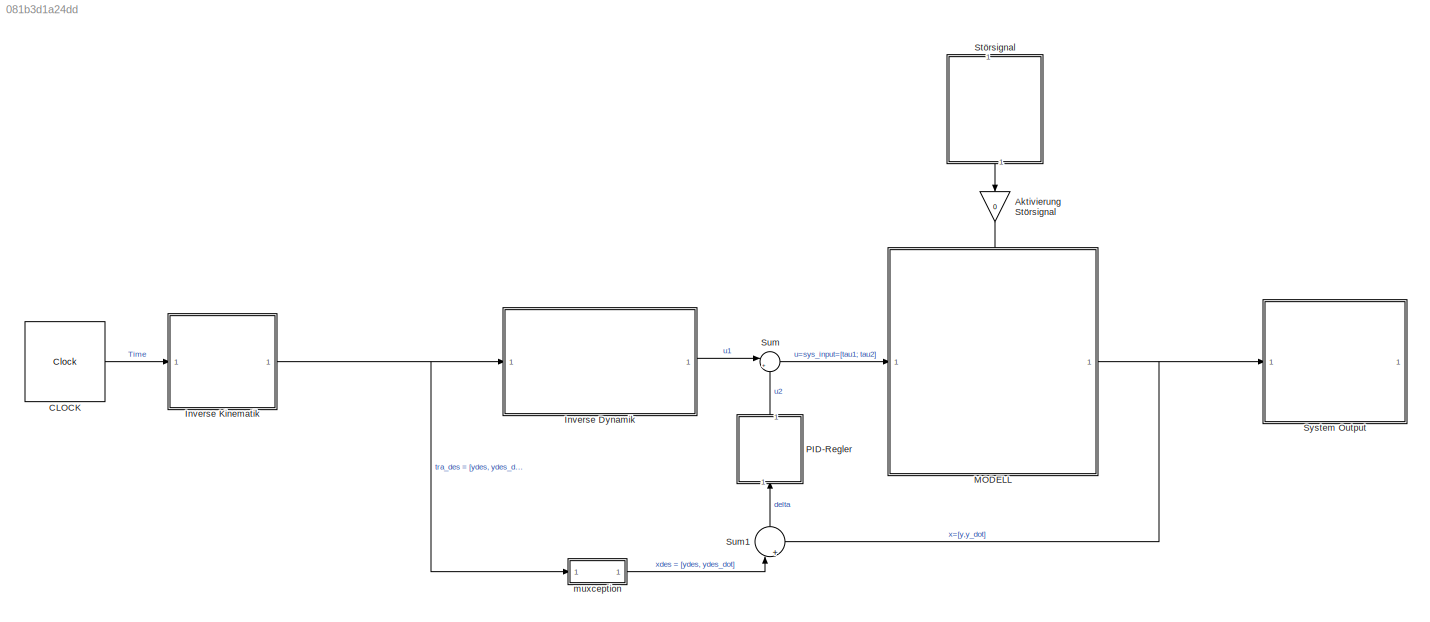
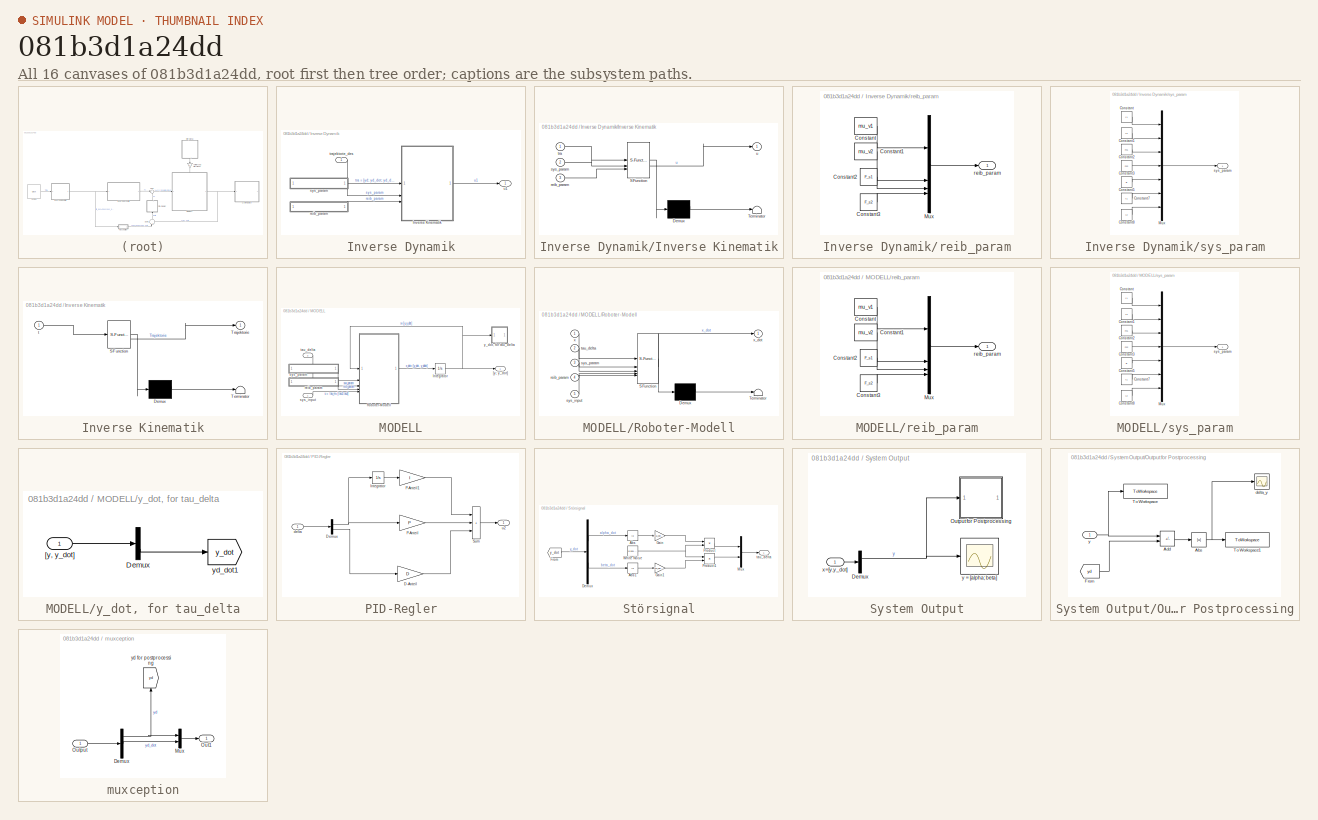
[diagram: thumbnail index - all 16 canvases of the model, root first then tree order]
MODEL slx_081b3d1a24dd
KIND model
CONFIG AbsTol = 1e-7
CONFIG EnableMultiTasking = off
CONFIG FixedStep = auto
CONFIG MaxStep = 3e-3
CONFIG MinStep = auto
CONFIG RelTol = 1e-4
CONFIG SampleTimeConstraint = Unconstrained
CONFIG SolverName = ode45
CONFIG StartTime = 0.0
CONFIG StopTime = 2
BLOCK [Gain] Aktivierung Störsignal
  Gain = 0
  Multiplication = Matrix(K*u)
  NameLocation = left
BLOCK [Clock] CLOCK
BLOCK [SubSystem] Inverse Dynamik
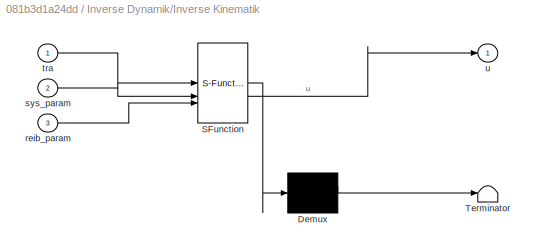
BLOCK [SubSystem] Inverse Dynamik/Inverse Kinematik
  ErrorFcn = Stateflow.Translate.translate
  PermitHierarchicalResolution = ExplicitOnly
  SFBlockType = MATLAB Function
  TreatAsAtomicUnit = on
BLOCK [Demux] Inverse Dynamik/Inverse Kinematik/ Demux 
  Outputs = 1
BLOCK [S-Function] Inverse Dynamik/Inverse Kinematik/ SFunction 
  EnableBusSupport = on
  FunctionName = sf_sfun
  PortCounts = [3 2]
  SFcnIsStateOwnerBlock = off
  SFunctionDeploymentMode = off
  Tag = Stateflow S-Function 1
BLOCK [Terminator] Inverse Dynamik/Inverse Kinematik/ Terminator 
BLOCK [Inport] Inverse Dynamik/Inverse Kinematik/reib_param
  Port = 3
BLOCK [Inport] Inverse Dynamik/Inverse Kinematik/sys_param
  Port = 2
BLOCK [Inport] Inverse Dynamik/Inverse Kinematik/tra
BLOCK [Outport] Inverse Dynamik/Inverse Kinematik/u
BLOCK [SubSystem] Inverse Dynamik/reib_param
BLOCK [Constant] Inverse Dynamik/reib_param/Constant
  Value = mu_v1
BLOCK [Constant] Inverse Dynamik/reib_param/Constant1
  Value = mu_v2
BLOCK [Constant] Inverse Dynamik/reib_param/Constant2
  Value = F_s1
BLOCK [Constant] Inverse Dynamik/reib_param/Constant3
  Value = F_s2
BLOCK [Mux] Inverse Dynamik/reib_param/Mux
  DisplayOption = bar
BLOCK [Outport] Inverse Dynamik/reib_param/reib_param
BLOCK [SubSystem] Inverse Dynamik/sys_param
BLOCK [Constant] Inverse Dynamik/sys_param/Constant
  Value = l1
BLOCK [Constant] Inverse Dynamik/sys_param/Constant1
  Value = l2
BLOCK [Constant] Inverse Dynamik/sys_param/Constant2
  Value = m1
BLOCK [Constant] Inverse Dynamik/sys_param/Constant3
  Value = m2
BLOCK [Constant] Inverse Dynamik/sys_param/Constant5
  Value = g
BLOCK [Constant] Inverse Dynamik/sys_param/Constant7
  Value = I1
BLOCK [Constant] Inverse Dynamik/sys_param/Constant8
  Value = I2
BLOCK [Mux] Inverse Dynamik/sys_param/Mux
  DisplayOption = bar
  Inputs = 7
BLOCK [Outport] Inverse Dynamik/sys_param/sys_param
BLOCK [Inport] Inverse Dynamik/trajektorie_des
BLOCK [Outport] Inverse Dynamik/u1
BLOCK [SubSystem] Inverse Kinematik
  ErrorFcn = Stateflow.Translate.translate
  PermitHierarchicalResolution = ExplicitOnly
  SFBlockType = MATLAB Function
  TreatAsAtomicUnit = on
BLOCK [Demux] Inverse Kinematik/ Demux 
  Outputs = 1
BLOCK [S-Function] Inverse Kinematik/ SFunction 
  EnableBusSupport = on
  FunctionName = sf_sfun
  PortCounts = [1 2]
  SFcnIsStateOwnerBlock = off
  SFunctionDeploymentMode = off
  Tag = Stateflow S-Function 3
BLOCK [Terminator] Inverse Kinematik/ Terminator 
BLOCK [Outport] Inverse Kinematik/Trajektorie
BLOCK [Inport] Inverse Kinematik/t
BLOCK [SubSystem] MODELL
  PortSchema = {"entries":[{"content":{"sides":[{"content":{"connectorIds":["In1"]},"type":"ConnectorPlacement.EquallySpacedRectSide","uuid":"e44e4c36-5739-4e55-a6ec-ca88d6f73c34"},{"content":{"connectorIds":["Out1"],"side":"RIGHT"},"type":"ConnectorPlacement.EquallySpacedRectSide","uuid":"5e6c41ef-5797-46fa-899e-46ee2542736a"},{"content":{"connectorIds":["In2"],"side":"TOP"},"type":"ConnectorPlacement.EquallySp...<+245ch>
BLOCK [Integrator] MODELL/Integrator
  InitialCondition = x0
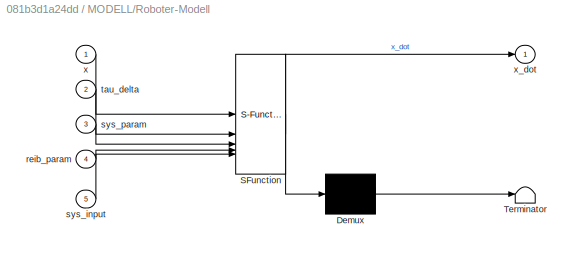
BLOCK [SubSystem] MODELL/Roboter-Modell
  ErrorFcn = Stateflow.Translate.translate
  PermitHierarchicalResolution = ExplicitOnly
  SFBlockType = MATLAB Function
  TreatAsAtomicUnit = on
BLOCK [Demux] MODELL/Roboter-Modell/ Demux 
  Outputs = 1
BLOCK [S-Function] MODELL/Roboter-Modell/ SFunction 
  EnableBusSupport = on
  FunctionName = sf_sfun
  PortCounts = [5 2]
  SFcnIsStateOwnerBlock = off
  SFunctionDeploymentMode = off
  Tag = Stateflow S-Function 2
BLOCK [Terminator] MODELL/Roboter-Modell/ Terminator 
BLOCK [Inport] MODELL/Roboter-Modell/reib_param
  Port = 4
BLOCK [Inport] MODELL/Roboter-Modell/sys_input
  Port = 5
BLOCK [Inport] MODELL/Roboter-Modell/sys_param
  Port = 3
BLOCK [Inport] MODELL/Roboter-Modell/tau_delta
  Port = 2
BLOCK [Inport] MODELL/Roboter-Modell/x
BLOCK [Outport] MODELL/Roboter-Modell/x_dot
BLOCK [Outport] MODELL/[y; y_dot]
BLOCK [SubSystem] MODELL/reib_param
BLOCK [Constant] MODELL/reib_param/Constant
  Value = mu_v1
BLOCK [Constant] MODELL/reib_param/Constant1
  Value = mu_v2
BLOCK [Constant] MODELL/reib_param/Constant2
  Value = F_s1
BLOCK [Constant] MODELL/reib_param/Constant3
  Value = F_s2
BLOCK [Mux] MODELL/reib_param/Mux
  DisplayOption = bar
BLOCK [Outport] MODELL/reib_param/reib_param
BLOCK [Inport] MODELL/sys_input
BLOCK [SubSystem] MODELL/sys_param
BLOCK [Constant] MODELL/sys_param/Constant
  Value = l1
BLOCK [Constant] MODELL/sys_param/Constant1
  Value = l2
BLOCK [Constant] MODELL/sys_param/Constant2
  Value = m1
BLOCK [Constant] MODELL/sys_param/Constant3
  Value = m2
BLOCK [Constant] MODELL/sys_param/Constant5
  Value = g
BLOCK [Constant] MODELL/sys_param/Constant7
  Value = I1
BLOCK [Constant] MODELL/sys_param/Constant8
  Value = I2
BLOCK [Mux] MODELL/sys_param/Mux
  DisplayOption = bar
  Inputs = 7
BLOCK [Outport] MODELL/sys_param/sys_param
BLOCK [Inport] MODELL/tau_delta
  Port = 2
BLOCK [SubSystem] MODELL/y_dot, for tau_delta
BLOCK [Demux] MODELL/y_dot, for tau_delta/Demux
  Outputs = 2
BLOCK [Inport] MODELL/y_dot, for tau_delta/[y, y_dot]
BLOCK [Goto] MODELL/y_dot, for tau_delta/yd_dot1
  GotoTag = y_dot
  TagVisibility = global
BLOCK [SubSystem] PID-Regler
  NameLocation = right
BLOCK [Gain] PID-Regler/D-Anteil
  Gain = D
  Multiplication = Matrix(K*u)
BLOCK [Demux] PID-Regler/Demux
  Outputs = 2
BLOCK [Integrator] PID-Regler/Integrator
BLOCK [Gain] PID-Regler/P-Anteil
  Gain = P
  Multiplication = Matrix(K*u)
BLOCK [Gain] PID-Regler/P-Anteil1
  Gain = I
  Multiplication = Matrix(K*u)
BLOCK [Sum] PID-Regler/Sum
  IconShape = rectangular
  Inputs = +++
BLOCK [Inport] PID-Regler/delta
BLOCK [Outport] PID-Regler/u2
BLOCK [SubSystem] Störsignal
  NameLocation = left
BLOCK [Abs] Störsignal/Abs
  SaturateOnIntegerOverflow = off
BLOCK [Abs] Störsignal/Abs1
  SaturateOnIntegerOverflow = off
BLOCK [Demux] Störsignal/Demux
  Outputs = 2
BLOCK [From] Störsignal/From
  GotoTag = y_dot
  TagVisibility = global
BLOCK [Gain] Störsignal/Gain
  Gain = tau_delta_alpha
BLOCK [Gain] Störsignal/Gain1
  Gain = tau_delta_beta
BLOCK [Mux] Störsignal/Mux
  DisplayOption = bar
  Inputs = 2
BLOCK [Product] Störsignal/Product
BLOCK [Product] Störsignal/Product1
BLOCK [Reference] Störsignal/White Noise  REF=simulink/Sources/Band-Limited
White Noise
  SourceBlock = simulink/Sources/Band-Limited\nWhite Noise
  SourceType = Band-Limited White Noise.
BLOCK [Outport] Störsignal/tau_delta
BLOCK [Sum] Sum
  Inputs = |++
BLOCK [Sum] Sum1
  Inputs = |+-
  NameLocation = right
BLOCK [SubSystem] System Output
BLOCK [Demux] System Output/Demux
  Outputs = 2
BLOCK [SubSystem] System Output/Output for Postprocessing
BLOCK [Abs] System Output/Output for Postprocessing/Abs
  SaturateOnIntegerOverflow = off
BLOCK [Sum] System Output/Output for Postprocessing/Add
  IconShape = rectangular
  Inputs = -+
BLOCK [From] System Output/Output for Postprocessing/From
  GotoTag = yd
  TagVisibility = global
BLOCK [ToWorkspace] System Output/Output for Postprocessing/To Workspace
  FixptAsFi = on
  MaxDataPoints = inf
  SampleTime = -1
  SaveFormat = Timeseries
  VariableName = y
BLOCK [ToWorkspace] System Output/Output for Postprocessing/To Workspace1
  FixptAsFi = on
  MaxDataPoints = inf
  SampleTime = -1
  SaveFormat = Timeseries
  VariableName = delta_y
BLOCK [Scope] System Output/Output for Postprocessing/delta_y
  Floating = off
  NumInputPorts = 1
  ScopeSpecificationString = Simulink.scopes.TimeScopeBlockCfg('CurrentConfiguration', extmgr.ConfigurationSet(extmgr.Configuration('Core','General UI',true),extmgr.Configuration('Core','Source UI',true),extmgr.Configuration('Sources','WiredSimulink',true,'DataLoggingVariableName','ScopeData1'),extmgr.Configuration('Visuals','Time Domain',true,'SerializedDisplays',{struct('MinYLimReal','-0.93499','MaxYLimReal','8.41488','YLab...<+1483ch>
BLOCK [Inport] System Output/Output for Postprocessing/y
BLOCK [Inport] System Output/x=[y,y_dot]
BLOCK [Scope] System Output/y = [alpha; beta]
  Floating = off
  NumInputPorts = 1
  ScopeSpecificationString = Simulink.scopes.TimeScopeBlockCfg('CurrentConfiguration', extmgr.ConfigurationSet(extmgr.Configuration('Core','General UI',true),extmgr.Configuration('Core','Source UI',true),extmgr.Configuration('Sources','WiredSimulink',true),extmgr.Configuration('Visuals','Time Domain',true,'SerializedDisplays',{struct('MinYLimReal','-13.56935','MaxYLimReal','16.8031','YLabelReal','','MinYLimMag','0.00000','Max...<+1486ch>
BLOCK [SubSystem] muxception
BLOCK [Demux] muxception/Demux
  Outputs = 3
BLOCK [Mux] muxception/Mux
  DisplayOption = bar
  Inputs = 2
BLOCK [Outport] muxception/Out1
BLOCK [Inport] muxception/Output
BLOCK [Goto] muxception/yd for postprocessing
  GotoTag = yd
  NameLocation = right
  TagVisibility = global
LINE Aktivierung Störsignal:1 -> MODELL:2
LINE CLOCK:1 -> Inverse Kinematik:1
LINE Inverse Dynamik/Inverse Kinematik:1 -> Inverse Dynamik/u1:1
LINE Inverse Dynamik/reib_param/Constant1:1 -> Inverse Dynamik/reib_param/Mux:2
LINE Inverse Dynamik/reib_param/Constant2:1 -> Inverse Dynamik/reib_param/Mux:3
LINE Inverse Dynamik/reib_param/Constant3:1 -> Inverse Dynamik/reib_param/Mux:4
LINE Inverse Dynamik/reib_param/Constant:1 -> Inverse Dynamik/reib_param/Mux:1
LINE Inverse Dynamik/reib_param/Mux:1 -> Inverse Dynamik/reib_param/reib_param:1
LINE Inverse Dynamik/reib_param:1 -> Inverse Dynamik/Inverse Kinematik:3
LINE Inverse Dynamik/sys_param/Constant1:1 -> Inverse Dynamik/sys_param/Mux:2
LINE Inverse Dynamik/sys_param/Constant2:1 -> Inverse Dynamik/sys_param/Mux:3
LINE Inverse Dynamik/sys_param/Constant3:1 -> Inverse Dynamik/sys_param/Mux:4
LINE Inverse Dynamik/sys_param/Constant5:1 -> Inverse Dynamik/sys_param/Mux:5
LINE Inverse Dynamik/sys_param/Constant7:1 -> Inverse Dynamik/sys_param/Mux:6
LINE Inverse Dynamik/sys_param/Constant8:1 -> Inverse Dynamik/sys_param/Mux:7
LINE Inverse Dynamik/sys_param/Constant:1 -> Inverse Dynamik/sys_param/Mux:1
LINE Inverse Dynamik/sys_param/Mux:1 -> Inverse Dynamik/sys_param/sys_param:1
LINE Inverse Dynamik/sys_param:1 -> Inverse Dynamik/Inverse Kinematik:2
LINE Inverse Dynamik/trajektorie_des:1 -> Inverse Dynamik/Inverse Kinematik:1
LINE Inverse Dynamik:1 -> Sum:1
NET Inverse Kinematik:1 -> Inverse Dynamik:1, muxception:1
NET MODELL/Integrator:1 -> MODELL/Roboter-Modell:1, MODELL/[y; y_dot]:1, MODELL/y_dot, for tau_delta:1
LINE MODELL/Roboter-Modell:1 -> MODELL/Integrator:1
LINE MODELL/reib_param/Constant1:1 -> MODELL/reib_param/Mux:2
LINE MODELL/reib_param/Constant2:1 -> MODELL/reib_param/Mux:3
LINE MODELL/reib_param/Constant3:1 -> MODELL/reib_param/Mux:4
LINE MODELL/reib_param/Constant:1 -> MODELL/reib_param/Mux:1
LINE MODELL/reib_param/Mux:1 -> MODELL/reib_param/reib_param:1
LINE MODELL/reib_param:1 -> MODELL/Roboter-Modell:4
LINE MODELL/sys_input:1 -> MODELL/Roboter-Modell:5
LINE MODELL/sys_param/Constant1:1 -> MODELL/sys_param/Mux:2
LINE MODELL/sys_param/Constant2:1 -> MODELL/sys_param/Mux:3
LINE MODELL/sys_param/Constant3:1 -> MODELL/sys_param/Mux:4
LINE MODELL/sys_param/Constant5:1 -> MODELL/sys_param/Mux:5
LINE MODELL/sys_param/Constant7:1 -> MODELL/sys_param/Mux:6
LINE MODELL/sys_param/Constant8:1 -> MODELL/sys_param/Mux:7
LINE MODELL/sys_param/Constant:1 -> MODELL/sys_param/Mux:1
LINE MODELL/sys_param/Mux:1 -> MODELL/sys_param/sys_param:1
LINE MODELL/sys_param:1 -> MODELL/Roboter-Modell:3
LINE MODELL/tau_delta:1 -> MODELL/Roboter-Modell:2
LINE MODELL/y_dot, for tau_delta/Demux:2 -> MODELL/y_dot, for tau_delta/yd_dot1:1
LINE MODELL/y_dot, for tau_delta/[y, y_dot]:1 -> MODELL/y_dot, for tau_delta/Demux:1
NET MODELL:1 -> Sum1:2, System Output:1
LINE PID-Regler/D-Anteil:1 -> PID-Regler/Sum:3
NET PID-Regler/Demux:1 -> PID-Regler/Integrator:1, PID-Regler/P-Anteil:1
LINE PID-Regler/Demux:2 -> PID-Regler/D-Anteil:1
LINE PID-Regler/Integrator:1 -> PID-Regler/P-Anteil1:1
LINE PID-Regler/P-Anteil1:1 -> PID-Regler/Sum:1
LINE PID-Regler/P-Anteil:1 -> PID-Regler/Sum:2
LINE PID-Regler/Sum:1 -> PID-Regler/u2:1
LINE PID-Regler/delta:1 -> PID-Regler/Demux:1
LINE PID-Regler:1 -> Sum:2
LINE Störsignal/Abs1:1 -> Störsignal/Gain1:1
LINE Störsignal/Abs:1 -> Störsignal/Gain:1
LINE Störsignal/Demux:1 -> Störsignal/Abs:1
LINE Störsignal/Demux:2 -> Störsignal/Abs1:1
LINE Störsignal/From:1 -> Störsignal/Demux:1
LINE Störsignal/Gain1:1 -> Störsignal/Product1:2
LINE Störsignal/Gain:1 -> Störsignal/Product:1
LINE Störsignal/Mux:1 -> Störsignal/tau_delta:1
LINE Störsignal/Product1:1 -> Störsignal/Mux:2
LINE Störsignal/Product:1 -> Störsignal/Mux:1
NET Störsignal/White Noise:1 -> Störsignal/Product1:1, Störsignal/Product:2
LINE Störsignal:1 -> Aktivierung Störsignal:1
LINE Sum1:1 -> PID-Regler:1
LINE Sum:1 -> MODELL:1
NET System Output/Demux:1 -> System Output/Output for Postprocessing:1, System Output/y = [alpha; beta]:1
NET System Output/Output for Postprocessing/Abs:1 -> System Output/Output for Postprocessing/To Workspace1:1, System Output/Output for Postprocessing/delta_y:1
LINE System Output/Output for Postprocessing/Add:1 -> System Output/Output for Postprocessing/Abs:1
LINE System Output/Output for Postprocessing/From:1 -> System Output/Output for Postprocessing/Add:2
NET System Output/Output for Postprocessing/y:1 -> System Output/Output for Postprocessing/Add:1, System Output/Output for Postprocessing/To Workspace:1
LINE System Output/x=[y,y_dot]:1 -> System Output/Demux:1
NET muxception/Demux:1 -> muxception/Mux:1, muxception/yd for postprocessing:1
LINE muxception/Demux:2 -> muxception/Mux:2
LINE muxception/Mux:1 -> muxception/Out1:1
LINE muxception/Output:1 -> muxception/Demux:1
LINE muxception:1 -> Sum1:1
note: NET lines group one-source signal fan-out (src -> all destinations, sorted); 1:1 wires keep LINE
CHART Inverse Dynamik/Inverse Kinematik states=1 transitions=1
  STATE_LABEL 'eML_blk_kernel()'
  STATE_LABEL 'SCRIPT:\nfunction u = fcn(tra, sys_param, reib_param)\n\nM = calc_M(tra(1:2), sys_param);\nD = calc_D(tra(1:2), tra(3:4), sys_param);\nG = calc_G(tra(1:2), sys_param);\ntau_R = calc_tau_R(tra(1:2), tra(3:4), sys_param, reib_param);\nB = eye(2,2);\n\nu = B \\ (M * tra(5:6) + D * tra(3:4) + G - tau_R);\nend'
CHART MODELL/Roboter-Modell states=1 transitions=1
  STATE_LABEL 'eML_blk_kernel()'
  STATE_LABEL 'SCRIPT:\nfunction x_dot = fcn(x, tau_delta, sys_param, reib_param, sys_input)\n%x(1:2)=y\n%x(3:4)=y_dot\nM = calc_M(x(1:2), sys_param);\nD = calc_D(x(1:2), x(3:4), sys_param);\nG = calc_G(x(1:2), sys_param);\ntau_R = calc_tau_R(x(1:2), x(3:4), sys_param, reib_param);\n\n%State Space System\nx_dot = [x(3:4);\n         M \\ ((tau_R + tau_delta) + sys_input - G - D * x(3:4))];\n\n% %Singularität sobald ich D und s...<+130ch>'
CHART Inverse Kinematik states=1 transitions=1
  STATE_LABEL 'eML_blk_kernel()'
  STATE_LABEL 'SCRIPT:\nfunction Trajektorie = fcn(t)\n\ntra = calc_Trajektorie_verallg(t);\n\nTrajektorie = tra;\n'
CHART  states=0 transitions=0
CHART  states=0 transitions=0
CHART  states=0 transitions=0
